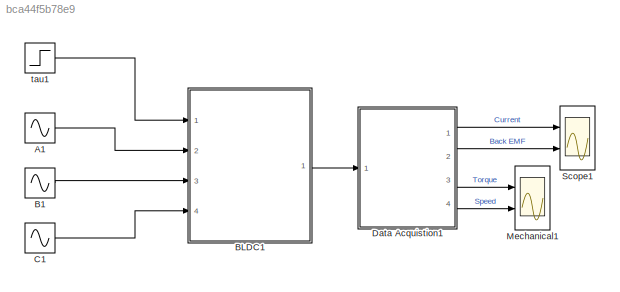
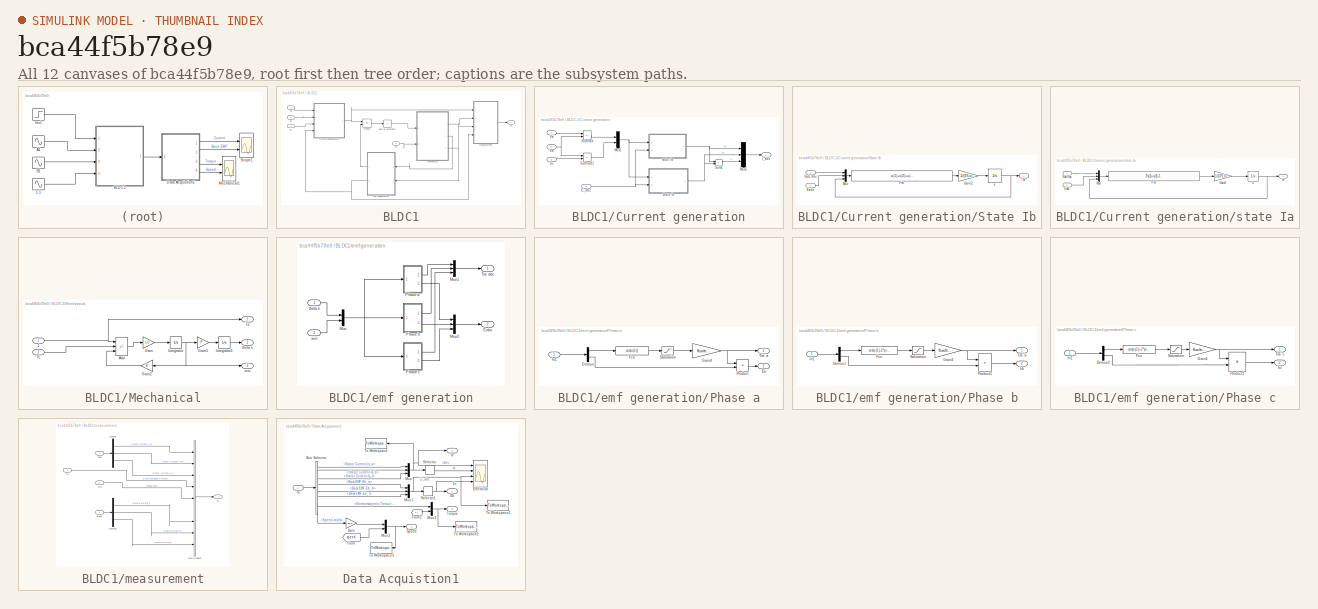
[diagram: thumbnail index - all 12 canvases of the model, root first then tree order]
MODEL slx_bca44f5b78e9
KIND model
CONFIG AbsTol = auto
CONFIG EnableMultiTasking = off
CONFIG FixedStep = auto
CONFIG MaxStep = auto
CONFIG MinStep = auto
CONFIG PreLoadFcn = Ts=1e-5\nflux=0.2158\ntrap=0.5\nB=7.92721e-6\nJ=92.5/1000\nP=8\nR=0.6\nL=0.00028\nK=25.5/1000
CONFIG RelTol = 1e-3
CONFIG SampleTimeConstraint = Unconstrained
CONFIG SolverName = VariableStepAuto
CONFIG StartTime = 0.0
CONFIG StopTime = 1.0
BLOCK [Sin] A1
  Amplitude = 220*sqrt(2)
  Frequency = 2*pi*50
  Ports = [0, 1]
  SampleTime = Ts
BLOCK [Sin] B1
  Amplitude = 220*sqrt(2)
  Frequency = 2*pi*50
  Phase = -2*pi/3
  Ports = [0, 1]
  SampleTime = Ts
BLOCK [SubSystem] BLDC1
  Ports = [4, 1]
  RequestExecContextInheritance = off
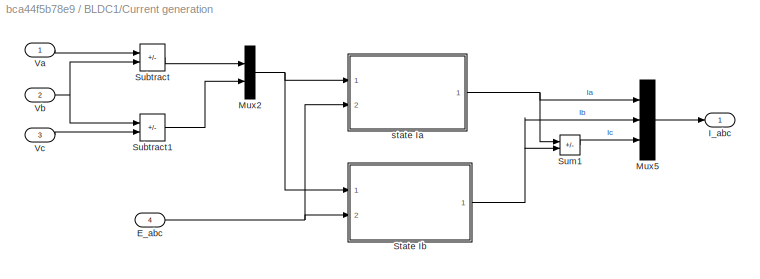
BLOCK [SubSystem] BLDC1/Current generation
  Ports = [4, 1]
  RequestExecContextInheritance = off
BLOCK [Inport] BLDC1/Current generation/E_abc
  Port = 4
BLOCK [Outport] BLDC1/Current generation/I_abc
BLOCK [Mux] BLDC1/Current generation/Mux2
  DisplayOption = bar
  Inputs = 2
  Ports = [2, 1]
BLOCK [Mux] BLDC1/Current generation/Mux5
  DisplayOption = bar
  Inputs = 3
  Ports = [3, 1]
BLOCK [SubSystem] BLDC1/Current generation/State Ib
  Ports = [2, 1]
  RequestExecContextInheritance = off
BLOCK [Inport] BLDC1/Current generation/State Ib/Eabc
  Port = 2
BLOCK [Fcn] BLDC1/Current generation/State Ib/Fcn
  Expr = -u(1)+u(2)+u(3)-2*u(4)+u(5)-3*Rs*u(6)
BLOCK [Gain] BLDC1/Current generation/State Ib/Gain2
  Gain = 1/(3*Ls)
  OutDataTypeStr = Inherit: Same as input
  ParamDataTypeStr = Inherit: Same as input
  SaturateOnIntegerOverflow = on
BLOCK [Outport] BLDC1/Current generation/State Ib/Ib
BLOCK [Mux] BLDC1/Current generation/State Ib/Mux
  DisplayOption = bar
  Inputs = 3
  Ports = [3, 1]
BLOCK [Inport] BLDC1/Current generation/State Ib/Vab,Vbc
BLOCK [Integrator] BLDC1/Current generation/State Ib/s 
  Ports = [1, 1]
BLOCK [Sum] BLDC1/Current generation/Subtract
  IconShape = rectangular
  Inputs = +-
  Ports = [2, 1]
BLOCK [Sum] BLDC1/Current generation/Subtract1
  IconShape = rectangular
  Inputs = +-
  Ports = [2, 1]
BLOCK [Sum] BLDC1/Current generation/Sum1
  IconShape = rectangular
  Inputs = --
  Ports = [2, 1]
  SaturateOnIntegerOverflow = on
BLOCK [Inport] BLDC1/Current generation/Va
BLOCK [Inport] BLDC1/Current generation/Vb
  Port = 2
BLOCK [Inport] BLDC1/Current generation/Vc
  Port = 3
BLOCK [SubSystem] BLDC1/Current generation/state Ia
  Ports = [2, 1]
  RequestExecContextInheritance = off
BLOCK [Inport] BLDC1/Current generation/state Ia/Eabc
  Port = 2
BLOCK [Fcn] BLDC1/Current generation/state Ia/Fcn
  Expr = 2*u(1)+u(2)-2*u(3)+u(4)+u(5)-3*Rs*u(6)
BLOCK [Gain] BLDC1/Current generation/state Ia/Gain2
  Gain = 1/(3*Ls)
  OutDataTypeStr = Inherit: Same as input
  ParamDataTypeStr = Inherit: Same as input
  SaturateOnIntegerOverflow = on
BLOCK [Outport] BLDC1/Current generation/state Ia/Ia
BLOCK [Mux] BLDC1/Current generation/state Ia/Mux
  DisplayOption = bar
  Inputs = 3
  Ports = [3, 1]
BLOCK [Inport] BLDC1/Current generation/state Ia/Vab,Vbc
BLOCK [Integrator] BLDC1/Current generation/state Ia/s 
  Ports = [1, 1]
BLOCK [SubSystem] BLDC1/Mechanical
  Ports = [2, 3]
  RequestExecContextInheritance = off
BLOCK [Inport] BLDC1/Mechanical/1
BLOCK [Sum] BLDC1/Mechanical/Add
  IconShape = rectangular
  Inputs = +--
  Ports = [3, 1]
BLOCK [Gain] BLDC1/Mechanical/Gain
  Gain = 1/J
BLOCK [Gain] BLDC1/Mechanical/Gain1
  Gain = P
BLOCK [Gain] BLDC1/Mechanical/Gain2
  Gain = B
  NameLocation = top
BLOCK [Integrator] BLDC1/Mechanical/Integrator
  Ports = [1, 1]
BLOCK [Integrator] BLDC1/Mechanical/Integrator1
  Ports = [1, 1]
BLOCK [Inport] BLDC1/Mechanical/TL
  Port = 2
BLOCK [Outport] BLDC1/Mechanical/Te
BLOCK [Outport] BLDC1/Mechanical/theta e
  Port = 2
BLOCK [Outport] BLDC1/Mechanical/wm
  Port = 3
BLOCK [Product] BLDC1/Product
  OutDataTypeStr = Inherit: Same as first input
  Ports = [2, 1]
  SaturateOnIntegerOverflow = on
BLOCK [Sum] BLDC1/Sum of Elements
  IconShape = rectangular
  Inputs = +
  Ports = [1, 1]
BLOCK [Inport] BLDC1/Tm
BLOCK [Inport] BLDC1/Va
  Port = 2
BLOCK [Inport] BLDC1/Vb
  Port = 3
BLOCK [Inport] BLDC1/Vc
  Port = 4
BLOCK [SubSystem] BLDC1/emf generation
  Ports = [2, 2]
  RequestExecContextInheritance = off
BLOCK [Outport] BLDC1/emf generation/Eabc
  Port = 2
BLOCK [Mux] BLDC1/emf generation/Mux
  DisplayOption = bar
  Inputs = 2
  Ports = [2, 1]
BLOCK [Mux] BLDC1/emf generation/Mux1
  DisplayOption = bar
  Inputs = 3
  Ports = [3, 1]
BLOCK [Mux] BLDC1/emf generation/Mux2
  DisplayOption = bar
  Inputs = 3
  Ports = [3, 1]
BLOCK [SubSystem] BLDC1/emf generation/Phase a
  Ports = [1, 2]
  RequestExecContextInheritance = off
BLOCK [Demux] BLDC1/emf generation/Phase a/Demux
  Outputs = 2
  Ports = [1, 2]
BLOCK [Outport] BLDC1/emf generation/Phase a/Ea
  Port = 2
BLOCK [Fcn] BLDC1/emf generation/Phase a/Fcn
  Expr = cos(u(1))
BLOCK [Gain] BLDC1/emf generation/Phase a/Gain4
  Gain = flux/trap
  OutDataTypeStr = Inherit: Same as input
  ParamDataTypeStr = Inherit: Same as input
  SaturateOnIntegerOverflow = on
BLOCK [Inport] BLDC1/emf generation/Phase a/In1
BLOCK [Product] BLDC1/emf generation/Phase a/Product
  Ports = [2, 1]
BLOCK [Saturate] BLDC1/emf generation/Phase a/Saturation
  LowerLimit = -trap
  UpperLimit = trap
BLOCK [Outport] BLDC1/emf generation/Phase a/Tra' a
BLOCK [SubSystem] BLDC1/emf generation/Phase b
  Ports = [1, 2]
  RequestExecContextInheritance = off
BLOCK [Demux] BLDC1/emf generation/Phase b/Demux1
  Outputs = 2
  Ports = [1, 2]
BLOCK [Outport] BLDC1/emf generation/Phase b/Eb
  Port = 2
BLOCK [Fcn] BLDC1/emf generation/Phase b/Fcn
  Expr = cos(u(1)-2*pi/3)
BLOCK [Gain] BLDC1/emf generation/Phase b/Gain4
  Gain = flux/trap
  OutDataTypeStr = Inherit: Same as input
  ParamDataTypeStr = Inherit: Same as input
  SaturateOnIntegerOverflow = on
BLOCK [Inport] BLDC1/emf generation/Phase b/In1
BLOCK [Product] BLDC1/emf generation/Phase b/Product1
  OutDataTypeStr = Inherit: Same as first input
  Ports = [2, 1]
  SaturateOnIntegerOverflow = on
BLOCK [Saturate] BLDC1/emf generation/Phase b/Saturation
  LowerLimit = -trap
  UpperLimit = trap
BLOCK [Outport] BLDC1/emf generation/Phase b/Tra' b
BLOCK [SubSystem] BLDC1/emf generation/Phase c
  Ports = [1, 2]
  RequestExecContextInheritance = off
BLOCK [Demux] BLDC1/emf generation/Phase c/Demux2
  Outputs = 2
  Ports = [1, 2]
BLOCK [Outport] BLDC1/emf generation/Phase c/Ec
  Port = 2
BLOCK [Fcn] BLDC1/emf generation/Phase c/Fcn
  Expr = cos(u(1)+2*pi/3)
BLOCK [Gain] BLDC1/emf generation/Phase c/Gain4
  Gain = flux/trap
  OutDataTypeStr = Inherit: Same as input
  ParamDataTypeStr = Inherit: Same as input
  SaturateOnIntegerOverflow = on
BLOCK [Inport] BLDC1/emf generation/Phase c/In1
BLOCK [Product] BLDC1/emf generation/Phase c/Product1
  OutDataTypeStr = Inherit: Same as first input
  Ports = [2, 1]
  SaturateOnIntegerOverflow = on
BLOCK [Saturate] BLDC1/emf generation/Phase c/Saturation
  LowerLimit = -trap
  UpperLimit = trap
BLOCK [Outport] BLDC1/emf generation/Phase c/Tra' c
BLOCK [Outport] BLDC1/emf generation/Tra' abc
BLOCK [Inport] BLDC1/emf generation/theta e
BLOCK [Inport] BLDC1/emf generation/wm
  Port = 2
BLOCK [Outport] BLDC1/m
BLOCK [SubSystem] BLDC1/measurement
  Ports = [4, 1]
  RequestExecContextInheritance = off
BLOCK [BusCreator] BLDC1/measurement/Bus Creator
  DisplayOption = bar
  InheritFromInputs = on
  Inputs = 9
  Ports = [9, 1]
BLOCK [Demux] BLDC1/measurement/Demux
  Outputs = 3
  Ports = [1, 3]
BLOCK [Demux] BLDC1/measurement/Demux1
  Outputs = 3
  Ports = [1, 3]
BLOCK [Inport] BLDC1/measurement/Eabc
  Port = 4
BLOCK [Inport] BLDC1/measurement/Iabc
BLOCK [Inport] BLDC1/measurement/Te
  Port = 2
BLOCK [Outport] BLDC1/measurement/m
BLOCK [Inport] BLDC1/measurement/wm
  Port = 3
BLOCK [Sin] C1
  Amplitude = 220*sqrt(2)
  Frequency = 2*pi*50
  Phase = 2*pi/3
  Ports = [0, 1]
  SampleTime = Ts
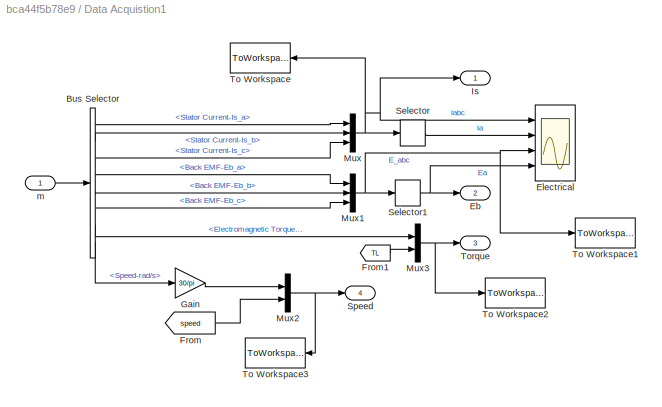
BLOCK [SubSystem] Data Acquistion1
  Ports = [1, 4]
  RequestExecContextInheritance = off
BLOCK [BusSelector] Data Acquistion1/Bus Selector
  OutputSignals = Stator Current-Is_a,Stator Current-Is_b,Stator Current-Is_c,Back EMF-Eb_a,Back EMF-Eb_b,Back EMF-Eb_c,Electromagnetic Torque-Nm,Speed-rad/s
  Ports = [1, 8]
BLOCK [Outport] Data Acquistion1/Eb
  Port = 2
BLOCK [Scope] Data Acquistion1/Electrical
  Floating = off
  NumInputPorts = 4
  Ports = [4]
  ScopeSpecificationString = C++SS(StrPVP('Location','[5, 49, 1371, 737]'),StrPVP('Open','off'),StrPVP('ZoomMode','yonly'),MxPVP('AxesTitles',54,'struct(''axes1'',''%<SignalLabel>'',''axes2'',''%<SignalLabel>'',''axes3'',''%<SignalLabel>'',''axes4'',''%<SignalLabel>'')'),StrPVP('TimeRange','1'),StrPVP('YMin','-40~-20~-100~-100'),StrPVP('YMax','40~30~100~100'),StrPVP('SaveName','ScopeData3'),StrPVP('DataFormat','StructureWithT...<+136ch>
BLOCK [From] Data Acquistion1/From
  GotoTag = speed
BLOCK [From] Data Acquistion1/From1
  GotoTag = TL
BLOCK [Gain] Data Acquistion1/Gain
  Gain = 30/pi
BLOCK [Outport] Data Acquistion1/Is
BLOCK [Mux] Data Acquistion1/Mux
  DisplayOption = bar
  Inputs = 3
  Ports = [3, 1]
BLOCK [Mux] Data Acquistion1/Mux1
  DisplayOption = bar
  Inputs = 3
  Ports = [3, 1]
BLOCK [Mux] Data Acquistion1/Mux2
  DisplayOption = bar
  Inputs = 2
  Ports = [2, 1]
BLOCK [Mux] Data Acquistion1/Mux3
  DisplayOption = bar
  Inputs = 2
  Ports = [2, 1]
BLOCK [Selector] Data Acquistion1/Selector
  IndexOptions = Index vector (dialog)
  Indices = [1 ]
  InputPortWidth = 3
  OutputSizes = 1
  Ports = [1, 1]
BLOCK [Selector] Data Acquistion1/Selector1
  IndexOptions = Index vector (dialog)
  Indices = [1 ]
  InputPortWidth = 3
  OutputSizes = 1
  Ports = [1, 1]
BLOCK [Outport] Data Acquistion1/Speed
  Port = 4
BLOCK [ToWorkspace] Data Acquistion1/To Workspace
  MaxDataPoints = inf
  Ports = [1]
  SampleTime = Ts
  VariableName = Iabc_pi
BLOCK [ToWorkspace] Data Acquistion1/To Workspace1
  MaxDataPoints = inf
  Ports = [1]
  SampleTime = Ts
  VariableName = Eabc_pi
BLOCK [ToWorkspace] Data Acquistion1/To Workspace2
  MaxDataPoints = inf
  Ports = [1]
  SampleTime = Ts
  VariableName = Te_pi
BLOCK [ToWorkspace] Data Acquistion1/To Workspace3
  MaxDataPoints = inf
  Ports = [1]
  SampleTime = Ts
  VariableName = N_pi
BLOCK [Outport] Data Acquistion1/Torque
  Port = 3
BLOCK [Inport] Data Acquistion1/m
BLOCK [Scope] Mechanical1
  Floating = off
  NumInputPorts = 2
  Ports = [2]
  ScopeSpecificationString = Simulink.scopes.TimeScopeBlockCfg('CurrentConfiguration', extmgr.ConfigurationSet(extmgr.Configuration('Core','General UI',true),extmgr.Configuration('Core','Source UI',true),extmgr.Configuration('Sources','WiredSimulink',true,'DataLoggingVariableName','ScopeData1','DataLoggingSaveFormat','StructureWithTime','DataLoggingDecimation','1','DataLoggingDecimateData',true),extmgr.Configuration('Visuals'...<+2409ch>
BLOCK [Scope] Scope1
  Floating = off
  NumInputPorts = 2
  Ports = [2]
  ScopeSpecificationString = Simulink.scopes.TimeScopeBlockCfg('CurrentConfiguration', extmgr.ConfigurationSet(extmgr.Configuration('Core','General UI',true),extmgr.Configuration('Core','Source UI',true),extmgr.Configuration('Sources','WiredSimulink',true,'DataLoggingSaveFormat','StructureWithTime','DataLoggingDecimation','1','DataLoggingDecimateData',true,'DataLoggingVariableName','ScopeData2'),extmgr.Configuration('Visuals'...<+2431ch>
BLOCK [Step] tau1
  After = 10
  SampleTime = 0
  Time = 0.5
LINE A1:1 -> BLDC1:2
LINE B1:1 -> BLDC1:3
NET BLDC1/Current generation/E_abc:1 -> BLDC1/Current generation/State Ib:2, BLDC1/Current generation/state Ia:2
NET BLDC1/Current generation/Mux2:1 -> BLDC1/Current generation/State Ib:1, BLDC1/Current generation/state Ia:1
LINE BLDC1/Current generation/Mux5:1 -> BLDC1/Current generation/I_abc:1
LINE BLDC1/Current generation/State Ib/Eabc:1 -> BLDC1/Current generation/State Ib/Mux:2
LINE BLDC1/Current generation/State Ib/Fcn:1 -> BLDC1/Current generation/State Ib/Gain2:1
LINE BLDC1/Current generation/State Ib/Gain2:1 -> BLDC1/Current generation/State Ib/s :1
LINE BLDC1/Current generation/State Ib/Mux:1 -> BLDC1/Current generation/State Ib/Fcn:1
LINE BLDC1/Current generation/State Ib/Vab,Vbc:1 -> BLDC1/Current generation/State Ib/Mux:1
NET BLDC1/Current generation/State Ib/s :1 -> BLDC1/Current generation/State Ib/Ib:1, BLDC1/Current generation/State Ib/Mux:3
NET BLDC1/Current generation/State Ib:1 -> BLDC1/Current generation/Mux5:2, BLDC1/Current generation/Sum1:2
LINE BLDC1/Current generation/Subtract1:1 -> BLDC1/Current generation/Mux2:2
LINE BLDC1/Current generation/Subtract:1 -> BLDC1/Current generation/Mux2:1
LINE BLDC1/Current generation/Sum1:1 -> BLDC1/Current generation/Mux5:3
LINE BLDC1/Current generation/Va:1 -> BLDC1/Current generation/Subtract:1
NET BLDC1/Current generation/Vb:1 -> BLDC1/Current generation/Subtract1:1, BLDC1/Current generation/Subtract:2
LINE BLDC1/Current generation/Vc:1 -> BLDC1/Current generation/Subtract1:2
LINE BLDC1/Current generation/state Ia/Eabc:1 -> BLDC1/Current generation/state Ia/Mux:2
LINE BLDC1/Current generation/state Ia/Fcn:1 -> BLDC1/Current generation/state Ia/Gain2:1
LINE BLDC1/Current generation/state Ia/Gain2:1 -> BLDC1/Current generation/state Ia/s :1
LINE BLDC1/Current generation/state Ia/Mux:1 -> BLDC1/Current generation/state Ia/Fcn:1
LINE BLDC1/Current generation/state Ia/Vab,Vbc:1 -> BLDC1/Current generation/state Ia/Mux:1
NET BLDC1/Current generation/state Ia/s :1 -> BLDC1/Current generation/state Ia/Ia:1, BLDC1/Current generation/state Ia/Mux:3
NET BLDC1/Current generation/state Ia:1 -> BLDC1/Current generation/Mux5:1, BLDC1/Current generation/Sum1:1
NET BLDC1/Current generation:1 -> BLDC1/Product:1, BLDC1/measurement:1
NET BLDC1/Mechanical/1:1 -> BLDC1/Mechanical/Add:1, BLDC1/Mechanical/Te:1
LINE BLDC1/Mechanical/Add:1 -> BLDC1/Mechanical/Gain:1
LINE BLDC1/Mechanical/Gain1:1 -> BLDC1/Mechanical/Integrator1:1
LINE BLDC1/Mechanical/Gain2:1 -> BLDC1/Mechanical/Add:3
LINE BLDC1/Mechanical/Gain:1 -> BLDC1/Mechanical/Integrator:1
LINE BLDC1/Mechanical/Integrator1:1 -> BLDC1/Mechanical/theta e:1
NET BLDC1/Mechanical/Integrator:1 -> BLDC1/Mechanical/Gain1:1, BLDC1/Mechanical/Gain2:1, BLDC1/Mechanical/wm:1
LINE BLDC1/Mechanical/TL:1 -> BLDC1/Mechanical/Add:2
LINE BLDC1/Mechanical:1 -> BLDC1/measurement:2
LINE BLDC1/Mechanical:2 -> BLDC1/emf generation:1
NET BLDC1/Mechanical:3 -> BLDC1/emf generation:2, BLDC1/measurement:3
LINE BLDC1/Product:1 -> BLDC1/Sum of Elements:1
LINE BLDC1/Sum of Elements:1 -> BLDC1/Mechanical:1
LINE BLDC1/Tm:1 -> BLDC1/Mechanical:2
LINE BLDC1/Va:1 -> BLDC1/Current generation:1
LINE BLDC1/Vb:1 -> BLDC1/Current generation:2
LINE BLDC1/Vc:1 -> BLDC1/Current generation:3
LINE BLDC1/emf generation/Mux1:1 -> BLDC1/emf generation/Tra' abc:1
LINE BLDC1/emf generation/Mux2:1 -> BLDC1/emf generation/Eabc:1
NET BLDC1/emf generation/Mux:1 -> BLDC1/emf generation/Phase a:1, BLDC1/emf generation/Phase b:1, BLDC1/emf generation/Phase c:1
LINE BLDC1/emf generation/Phase a/Demux:1 -> BLDC1/emf generation/Phase a/Fcn:1
LINE BLDC1/emf generation/Phase a/Demux:2 -> BLDC1/emf generation/Phase a/Product:2
LINE BLDC1/emf generation/Phase a/Fcn:1 -> BLDC1/emf generation/Phase a/Saturation:1
NET BLDC1/emf generation/Phase a/Gain4:1 -> BLDC1/emf generation/Phase a/Product:1, BLDC1/emf generation/Phase a/Tra' a:1
LINE BLDC1/emf generation/Phase a/In1:1 -> BLDC1/emf generation/Phase a/Demux:1
LINE BLDC1/emf generation/Phase a/Product:1 -> BLDC1/emf generation/Phase a/Ea:1
LINE BLDC1/emf generation/Phase a/Saturation:1 -> BLDC1/emf generation/Phase a/Gain4:1
LINE BLDC1/emf generation/Phase a:1 -> BLDC1/emf generation/Mux1:1
LINE BLDC1/emf generation/Phase a:2 -> BLDC1/emf generation/Mux2:1
LINE BLDC1/emf generation/Phase b/Demux1:1 -> BLDC1/emf generation/Phase b/Fcn:1
LINE BLDC1/emf generation/Phase b/Demux1:2 -> BLDC1/emf generation/Phase b/Product1:2
LINE BLDC1/emf generation/Phase b/Fcn:1 -> BLDC1/emf generation/Phase b/Saturation:1
NET BLDC1/emf generation/Phase b/Gain4:1 -> BLDC1/emf generation/Phase b/Product1:1, BLDC1/emf generation/Phase b/Tra' b:1
LINE BLDC1/emf generation/Phase b/In1:1 -> BLDC1/emf generation/Phase b/Demux1:1
LINE BLDC1/emf generation/Phase b/Product1:1 -> BLDC1/emf generation/Phase b/Eb:1
LINE BLDC1/emf generation/Phase b/Saturation:1 -> BLDC1/emf generation/Phase b/Gain4:1
LINE BLDC1/emf generation/Phase b:1 -> BLDC1/emf generation/Mux1:2
LINE BLDC1/emf generation/Phase b:2 -> BLDC1/emf generation/Mux2:2
LINE BLDC1/emf generation/Phase c/Demux2:1 -> BLDC1/emf generation/Phase c/Fcn:1
LINE BLDC1/emf generation/Phase c/Demux2:2 -> BLDC1/emf generation/Phase c/Product1:2
LINE BLDC1/emf generation/Phase c/Fcn:1 -> BLDC1/emf generation/Phase c/Saturation:1
NET BLDC1/emf generation/Phase c/Gain4:1 -> BLDC1/emf generation/Phase c/Product1:1, BLDC1/emf generation/Phase c/Tra' c:1
LINE BLDC1/emf generation/Phase c/In1:1 -> BLDC1/emf generation/Phase c/Demux2:1
LINE BLDC1/emf generation/Phase c/Product1:1 -> BLDC1/emf generation/Phase c/Ec:1
LINE BLDC1/emf generation/Phase c/Saturation:1 -> BLDC1/emf generation/Phase c/Gain4:1
LINE BLDC1/emf generation/Phase c:1 -> BLDC1/emf generation/Mux1:3
LINE BLDC1/emf generation/Phase c:2 -> BLDC1/emf generation/Mux2:3
LINE BLDC1/emf generation/theta e:1 -> BLDC1/emf generation/Mux:1
LINE BLDC1/emf generation/wm:1 -> BLDC1/emf generation/Mux:2
LINE BLDC1/emf generation:1 -> BLDC1/Product:2
NET BLDC1/emf generation:2 -> BLDC1/Current generation:4, BLDC1/measurement:4
LINE BLDC1/measurement/Bus Creator:1 -> BLDC1/measurement/m:1
LINE BLDC1/measurement/Demux1:1 -> BLDC1/measurement/Bus Creator:7
LINE BLDC1/measurement/Demux1:2 -> BLDC1/measurement/Bus Creator:8
LINE BLDC1/measurement/Demux1:3 -> BLDC1/measurement/Bus Creator:9
LINE BLDC1/measurement/Demux:1 -> BLDC1/measurement/Bus Creator:1
LINE BLDC1/measurement/Demux:2 -> BLDC1/measurement/Bus Creator:2
LINE BLDC1/measurement/Demux:3 -> BLDC1/measurement/Bus Creator:3
LINE BLDC1/measurement/Eabc:1 -> BLDC1/measurement/Demux1:1
LINE BLDC1/measurement/Iabc:1 -> BLDC1/measurement/Demux:1
LINE BLDC1/measurement/Te:1 -> BLDC1/measurement/Bus Creator:4
LINE BLDC1/measurement/wm:1 -> BLDC1/measurement/Bus Creator:5
LINE BLDC1/measurement:1 -> BLDC1/m:1
LINE BLDC1:1 -> Data Acquistion1:1
LINE C1:1 -> BLDC1:4
LINE Data Acquistion1/Bus Selector:1 -> Data Acquistion1/Mux:1
LINE Data Acquistion1/Bus Selector:2 -> Data Acquistion1/Mux:2
LINE Data Acquistion1/Bus Selector:3 -> Data Acquistion1/Mux:3
LINE Data Acquistion1/Bus Selector:4 -> Data Acquistion1/Mux1:1
LINE Data Acquistion1/Bus Selector:5 -> Data Acquistion1/Mux1:2
LINE Data Acquistion1/Bus Selector:6 -> Data Acquistion1/Mux1:3
LINE Data Acquistion1/Bus Selector:7 -> Data Acquistion1/Mux3:1
LINE Data Acquistion1/Bus Selector:8 -> Data Acquistion1/Gain:1
LINE Data Acquistion1/From1:1 -> Data Acquistion1/Mux3:2
LINE Data Acquistion1/From:1 -> Data Acquistion1/Mux2:2
LINE Data Acquistion1/Gain:1 -> Data Acquistion1/Mux2:1
NET Data Acquistion1/Mux1:1 -> Data Acquistion1/Electrical:3, Data Acquistion1/Selector1:1, Data Acquistion1/To Workspace1:1
NET Data Acquistion1/Mux2:1 -> Data Acquistion1/Speed:1, Data Acquistion1/To Workspace3:1
NET Data Acquistion1/Mux3:1 -> Data Acquistion1/To Workspace2:1, Data Acquistion1/Torque:1
NET Data Acquistion1/Mux:1 -> Data Acquistion1/Electrical:1, Data Acquistion1/Is:1, Data Acquistion1/Selector:1, Data Acquistion1/To Workspace:1
NET Data Acquistion1/Selector1:1 -> Data Acquistion1/Eb:1, Data Acquistion1/Electrical:4
LINE Data Acquistion1/Selector:1 -> Data Acquistion1/Electrical:2
LINE Data Acquistion1/m:1 -> Data Acquistion1/Bus Selector:1
LINE Data Acquistion1:1 -> Scope1:1
LINE Data Acquistion1:2 -> Scope1:2
LINE Data Acquistion1:3 -> Mechanical1:1
LINE Data Acquistion1:4 -> Mechanical1:2
LINE tau1:1 -> BLDC1:1
note: NET lines group one-source signal fan-out (src -> all destinations, sorted); 1:1 wires keep LINE
